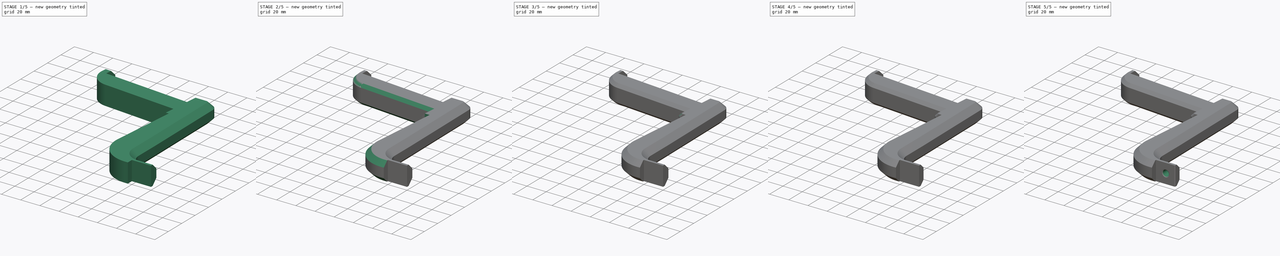
[diagram: build sequence overview — one tinted view per stage of 5, left to right]
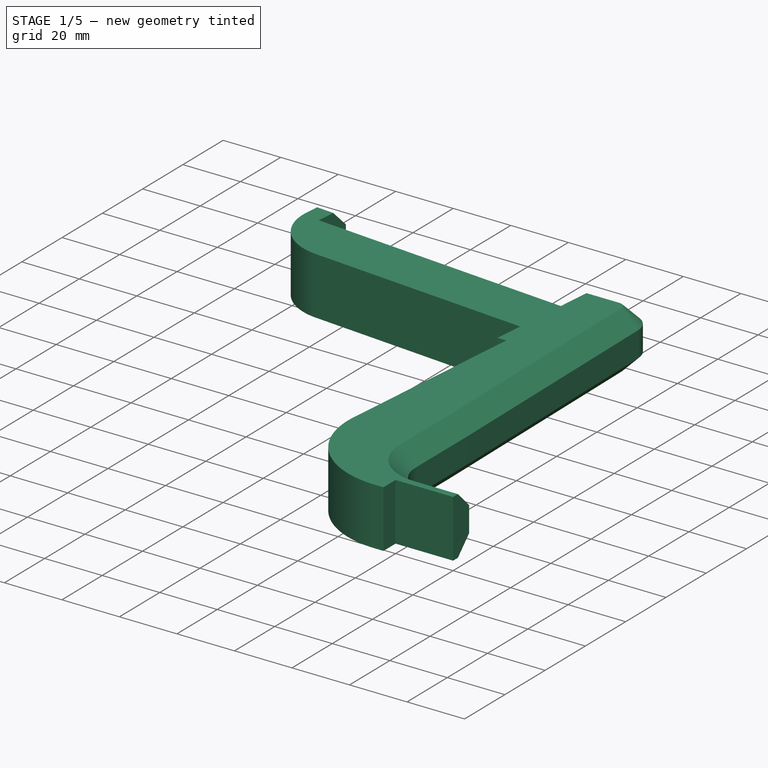
[diagram: stage 1 of 5 — iso view after this stage's code; geometry added in this stage tinted green]
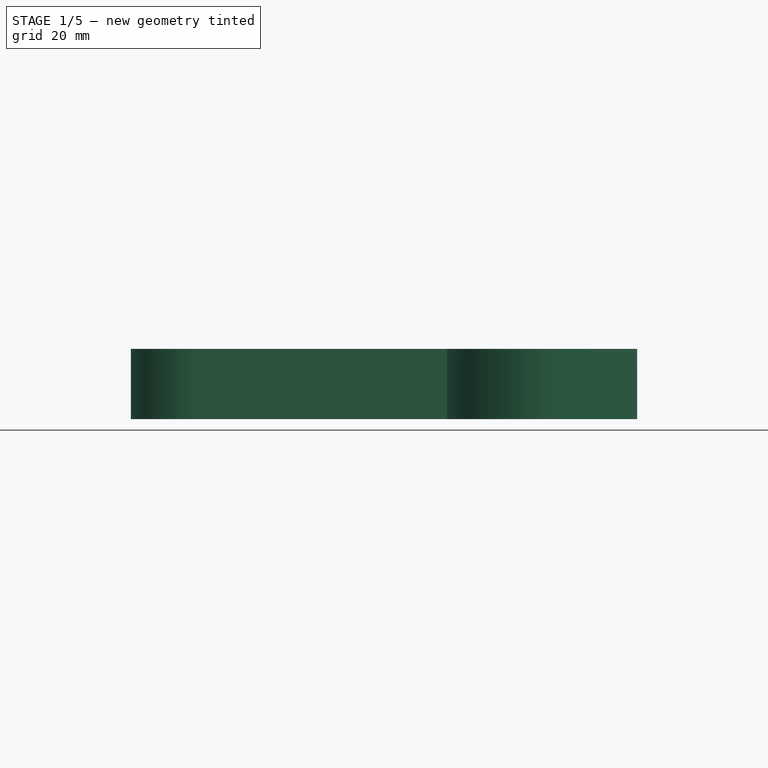
[diagram: stage 1 of 5 — front view after this stage's code; geometry added in this stage tinted green]
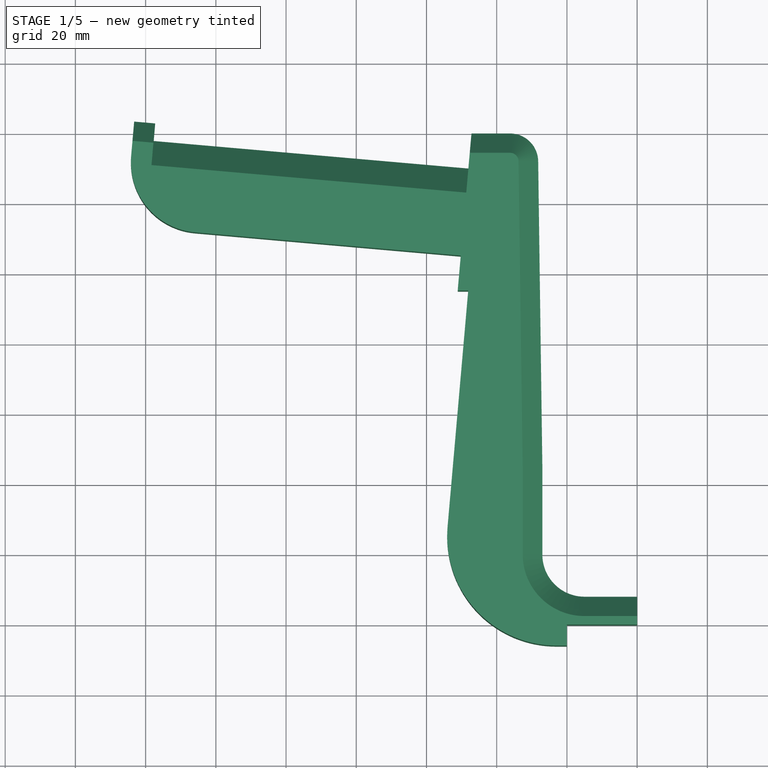
[diagram: stage 1 of 5 — top view after this stage's code; geometry added in this stage tinted green]
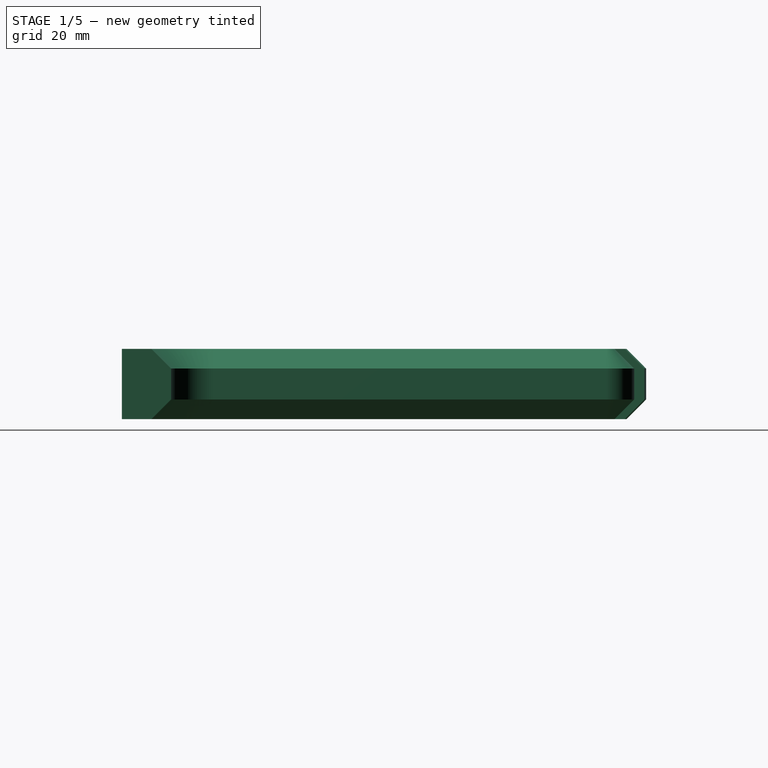
[diagram: stage 1 of 5 — right view after this stage's code; geometry added in this stage tinted green]
FCSTD DOCUMENT  (FreeCAD 0.17R12871 (Git))
Label: CR-3dpM
License: All rights reserved
LicenseURL: http://en.wikipedia.org/wiki/All_rights_reserved
objects: PartDesign::Fillet×7, PartDesign::Chamfer×6, Sketcher::SketchObject×2, PartDesign::Pad×1, PartDesign::Pocket×1, PartDesign::Body×1
note: 20 computed .brp shape members not serialized (recipe doc carries the construction recipe); baked Part::Feature solids carry a one-line shape summary decoded from their .brp

FEATURE [Sketcher::SketchObject] Sketch
  MapMode = 5
  Support = -> [XY_Plane]
  sketch-geometry (22):
    g0: LineSegment StartX=0 StartY=0 StartZ=0 EndX=20 EndY=0 EndZ=0
    g1: LineSegment StartX=20 StartY=0 StartZ=0 EndX=20 EndY=8 EndZ=0
    g2: LineSegment StartX=20 StartY=8 StartZ=0 EndX=5 EndY=8 EndZ=0
    g3: LineSegment StartX=-16.1898 StartY=139.962 StartZ=0 EndX=-27.1898 EndY=139.962 EndZ=0
    g4: LineSegment StartX=-27.1898 StartY=139.962 StartZ=0 EndX=-28.0613 EndY=130 EndZ=0
    g5: LineSegment StartX=-28.0613 StartY=130 StartZ=0 EndX=-117.719 EndY=137.844 EndZ=0
    g6: LineSegment StartX=-117.719 StartY=137.844 StartZ=0 EndX=-117.283 EndY=142.825 EndZ=0
    g7: LineSegment StartX=-117.283 StartY=142.825 StartZ=0 EndX=-123.26 EndY=143.348 EndZ=0
    g8: LineSegment StartX=-123.26 StartY=143.348 StartZ=0 EndX=-124.132 EndY=133.386 EndZ=0
    g9: LineSegment StartX=-105.951 StartY=111.719 StartZ=0 EndX=-30.2402 EndY=105.095 EndZ=0
    g10: LineSegment StartX=-30.2402 StartY=105.095 StartZ=0 EndX=-31.1118 EndY=95.1332 EndZ=0
    g11: LineSegment StartX=-31.1118 StartY=95.1332 StartZ=0 EndX=-28.1118 EndY=95.1332 EndZ=0
    g12: LineSegment StartX=-28.1118 StartY=95.1332 StartZ=0 EndX=-34 EndY=27.8306 EndZ=0
    g13: LineSegment StartX=-3 StartY=-6 StartZ=0 EndX=0 EndY=-6 EndZ=0
    g14: LineSegment StartX=0 StartY=-6 StartZ=0 EndX=0 EndY=0 EndZ=0
    g15: ArcOfCircle CenterX=5 CenterY=20 CenterZ=0 NormalX=0 NormalY=0 NormalZ=1 AngleXU=0 Radius=12 StartAngle=3.14159 EndAngle=4.71239
    g16: ArcOfCircle CenterX=-16.1898 CenterY=131.962 CenterZ=0 NormalX=0 NormalY=0 NormalZ=1 AngleXU=0 Radius=8 StartAngle=0.0136721 EndAngle=1.5708
    g17: LineSegment [constr] StartX=-30.2402 StartY=105.095 StartZ=0 EndX=-28.0613 EndY=130 EndZ=0
    g18: ArcOfCircle CenterX=-104.208 CenterY=131.643 CenterZ=0 NormalX=0 NormalY=0 NormalZ=1 AngleXU=0 Radius=20 StartAngle=3.05433 EndAngle=4.62512
    g19: ArcOfCircle CenterX=-3 CenterY=25.1184 CenterZ=0 NormalX=0 NormalY=0 NormalZ=1 AngleXU=0 Radius=31.1184 StartAngle=3.05433 EndAngle=4.71239
    g20: LineSegment StartX=-7 StartY=20 StartZ=0 EndX=-7 EndY=45 EndZ=0
    g21: LineSegment StartX=-7 StartY=45 StartZ=0 EndX=-8.19052 EndY=132.071 EndZ=0
  constraints (60):
    c: Coincident(g-1,g0)
    c: PointOnObject(g0,g-1)
    c: Coincident(g0,g1)
    c: Coincident(g1,g2)
    c: Horizontal(g2)
    c: Horizontal(g3)
    c: Coincident(g4,g5)
    c: Coincident(g5,g6)
    c: Coincident(g6,g7)
    c: Coincident(g7,g8)
    c: Coincident(g9,g10)
    c: Coincident(g10,g11)
    c: Horizontal(g11)
    c: Coincident(g11,g12)
    c: Coincident(g13,g14)
    c: Coincident(g14,g0)
    c: Vertical(g14)
    c: Tangent(g2,g15) = 1.5708
    c: Tangent(g20,g15) = 1.5708
    c: Tangent(g3,g16) = -1.5708
    c: Parallel(g9,g5)
    c: Parallel(g5,g7)
    c: Coincident(g17,g9)
    c: Coincident(g17,g4)
    c: Parallel(g10,g17)
    c: Parallel(g17,g4)
    c: Parallel(g4,g6)
    c: Parallel(g6,g8)
    c: Angle(g5) = 3.05433
    c: Angle(g10) = -1.65806
    c: DistanceY(g-1,g4) = 130
    c: DistanceY(g14,g14) = 6
    c: DistanceX(g-1,g0) = 20
    c: Vertical(g1)
    c: DistanceY(g1,g1) = 8
    c: DistanceX(g20,g1) = 27
    c: Radius(g15) = 12
    c: Distance(g5) = 90
    c: Distance(g4) = 10
    c: Distance(g17) = 25
    c: Distance(g10) = 10
    c: Distance(g6) = 5
    c: Distance(g7) = 6
    c: Radius(g16) = 8
    c: Tangent(g8,g18) = -1.5708
    c: Tangent(g9,g18) = -1.5708
    c: Radius(g18) = 20
    c: Tangent(g12,g19) = -1.5708
    c: Tangent(g13,g19) = -1.5708
    c: DistanceX(g12,g13) = 34
    c: Horizontal(g13)
    c: DistanceX(g13,g13) = 3
    c: Vertical(g20)
    c: Coincident(g21,g20)
    c: Angle(g12) = -1.65806
    c: Coincident(g4,g3)
    c: Tangent(g16,g21) = -1.5708
    c: DistanceY(g20,g20) = 25
    c: DistanceX(g11,g11) = 3
    c: DistanceX(g3,g3) = 11
FEATURE [PartDesign::Pad] Pad
  Length = 20
  Length2 = 100
  Profile = -> Sketch
  Type = 0
FEATURE [Sketcher::SketchObject] Sketch001
  MapMode = 5
  Placement = pos=(0,0,0) rot=(1,0,0;1.5708rad)
  sketch-geometry (1):
    g0: Circle CenterX=10.1 CenterY=10 CenterZ=0 NormalX=0 NormalY=0 NormalZ=1 AngleXU=0 Radius=3
  constraints (3):
    c: Radius(g0) = 3
    c: DistanceY(g-1,g0) = 10
    c: DistanceX(g-1,g0) = 10.1
FEATURE [PartDesign::Chamfer] Chamfer
  Base = -> Pad [Edge19,Edge18]
  BaseFeature = -> Pad
  Size = 7
FEATURE [PartDesign::Chamfer] Chamfer001
  Base = -> Chamfer [Edge41,Edge21,Edge36,Edge16]
  BaseFeature = -> Chamfer
  Size = 5.6
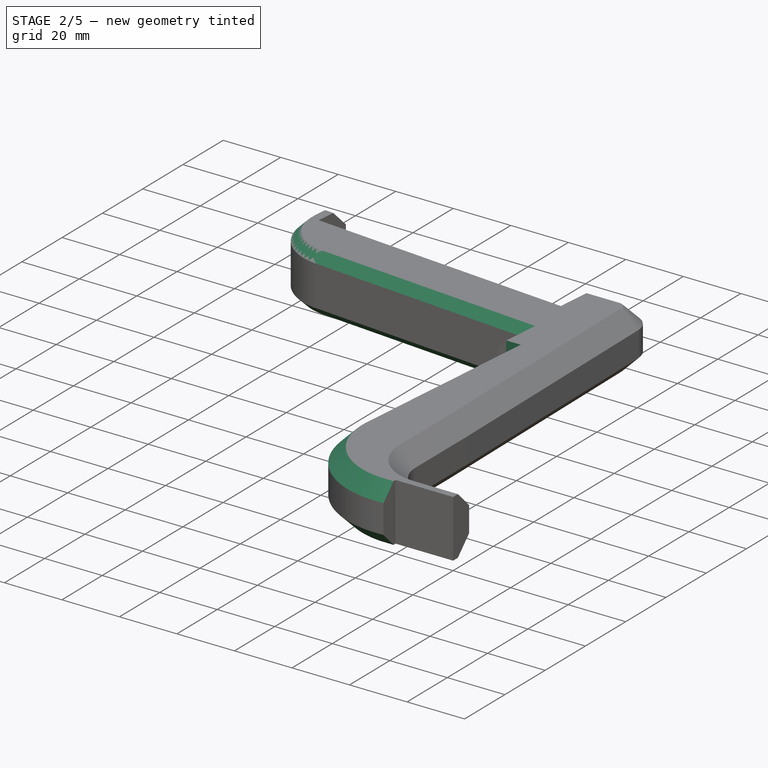
[diagram: stage 2 of 5 — iso view after this stage's code; geometry added in this stage tinted green]
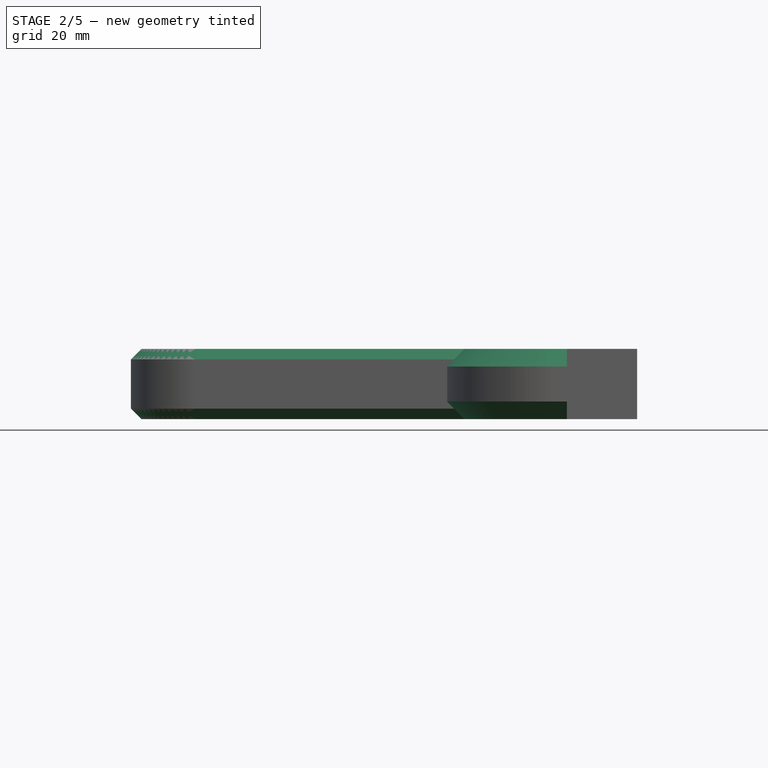
[diagram: stage 2 of 5 — front view after this stage's code; geometry added in this stage tinted green]
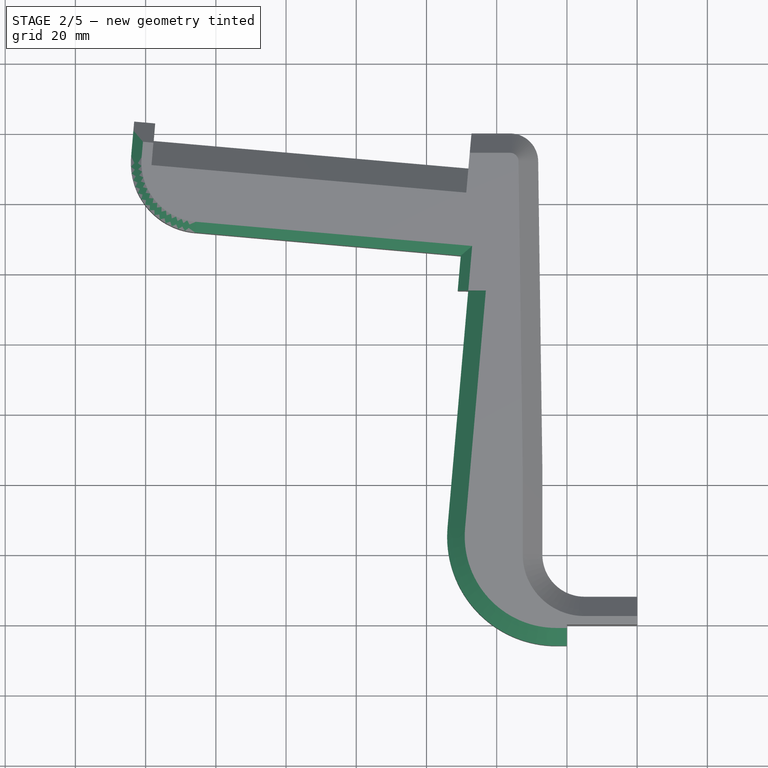
[diagram: stage 2 of 5 — top view after this stage's code; geometry added in this stage tinted green]
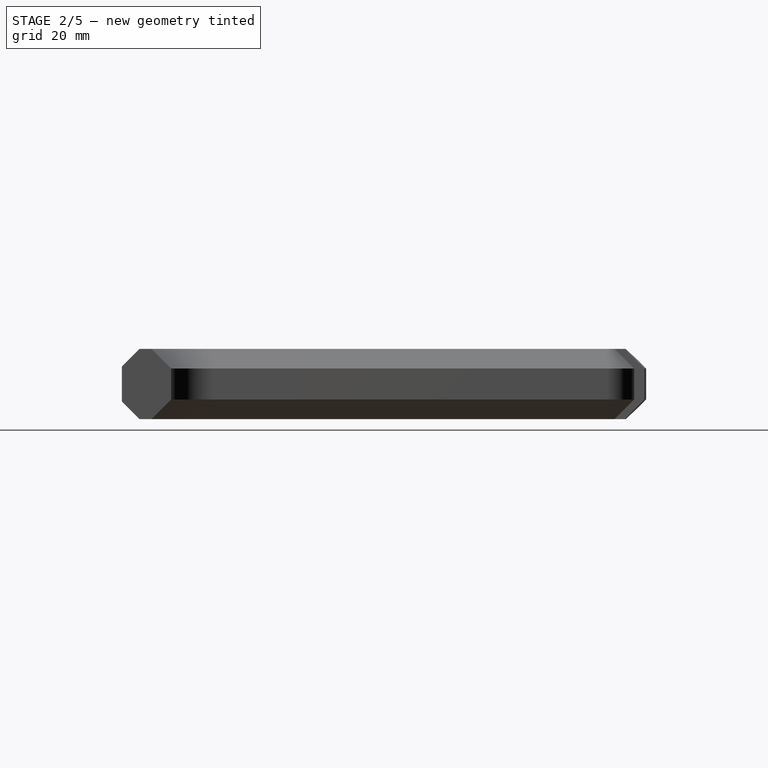
[diagram: stage 2 of 5 — right view after this stage's code; geometry added in this stage tinted green]
FEATURE [PartDesign::Chamfer] Chamfer002
  Base = -> Chamfer001 [Edge52,Edge23]
  BaseFeature = -> Chamfer001
  Size = 3
FEATURE [PartDesign::Chamfer] Chamfer003
  Base = -> Chamfer002 [Edge61,Edge14]
  BaseFeature = -> Chamfer002
  Size = 5
FEATURE [PartDesign::Chamfer] Chamfer004
  Base = -> Chamfer003 [Edge57,Edge12]
  BaseFeature = -> Chamfer003
  Size = 3
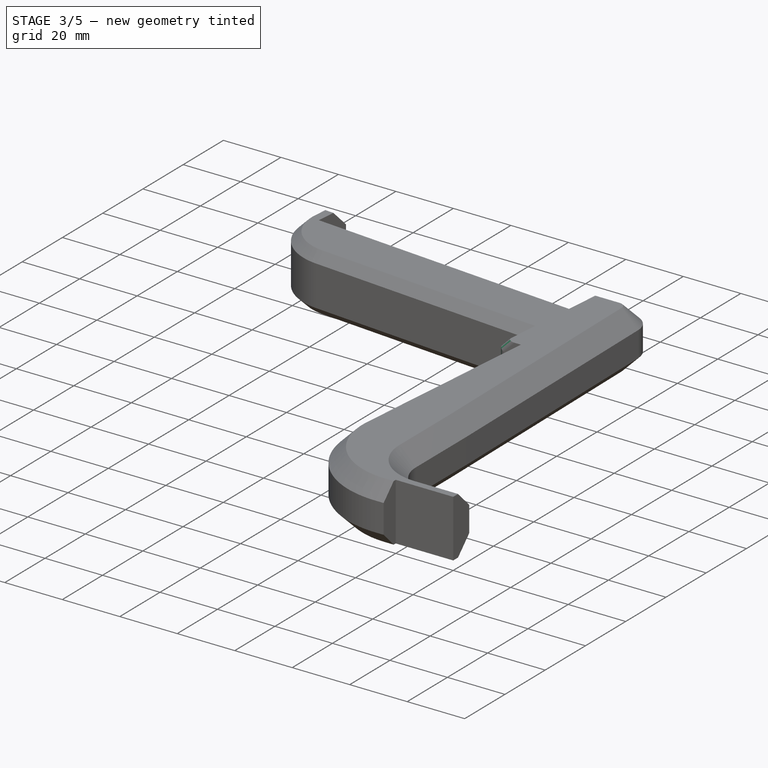
[diagram: stage 3 of 5 — iso view after this stage's code; geometry added in this stage tinted green]
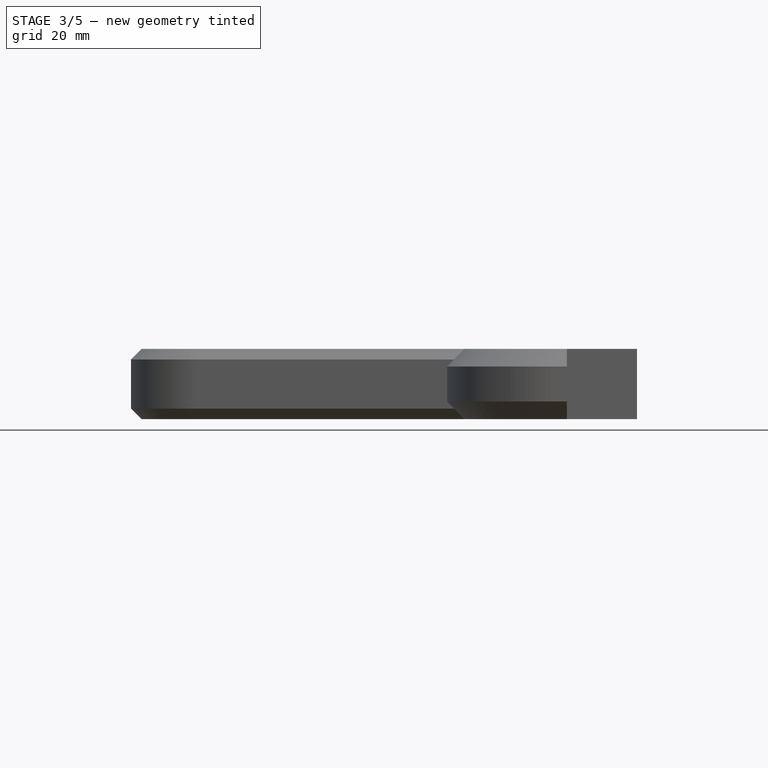
[diagram: stage 3 of 5 — front view after this stage's code; geometry added in this stage tinted green]
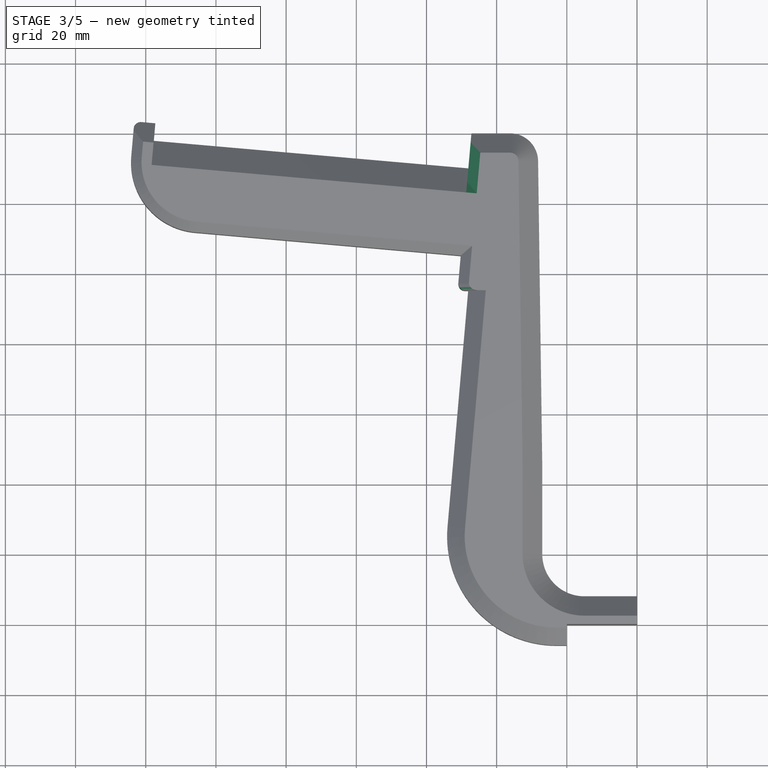
[diagram: stage 3 of 5 — top view after this stage's code; geometry added in this stage tinted green]
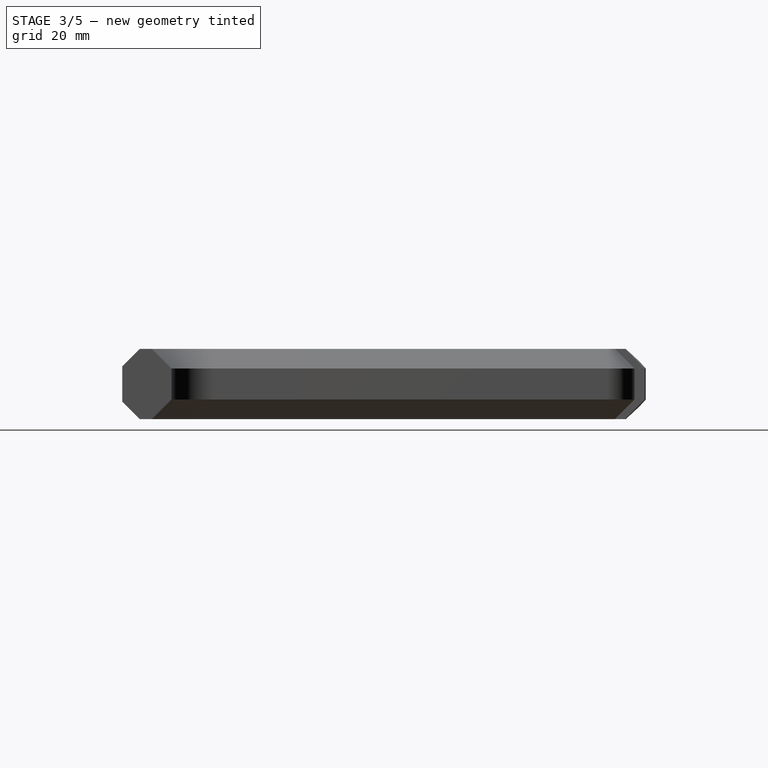
[diagram: stage 3 of 5 — right view after this stage's code; geometry added in this stage tinted green]
FEATURE [PartDesign::Fillet] Fillet
  Base = -> Chamfer004 [Edge25,Edge27,Edge29]
  BaseFeature = -> Chamfer004
  Radius = 2
FEATURE [PartDesign::Fillet] Fillet001
  Base = -> Fillet [Edge129]
  BaseFeature = -> Fillet
  Radius = 2
FEATURE [PartDesign::Chamfer] Chamfer005
  Base = -> Fillet001 [Edge99,Edge39]
  BaseFeature = -> Fillet001
  Size = 3
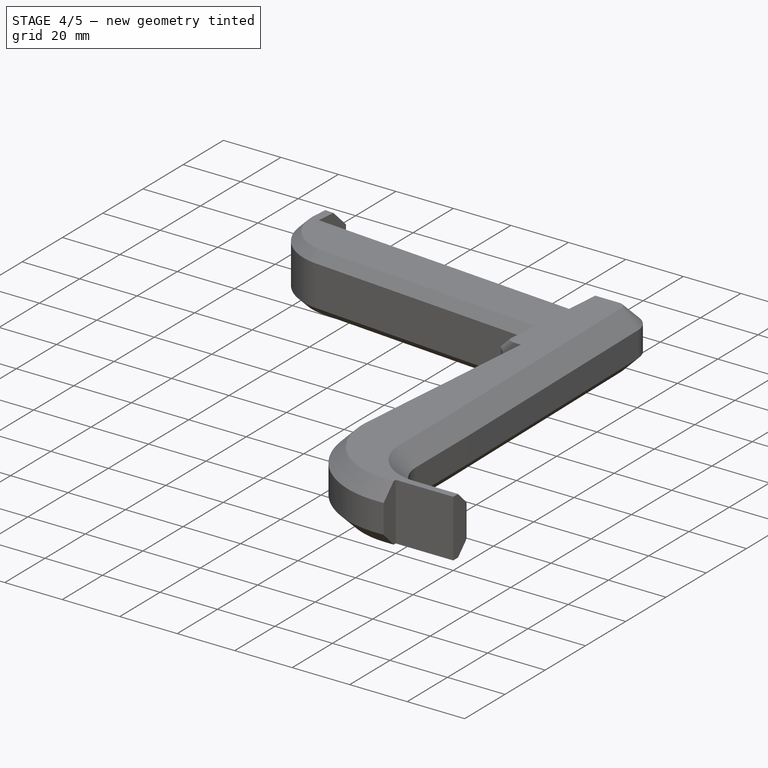
[diagram: stage 4 of 5 — iso view after this stage's code; geometry added in this stage tinted green]
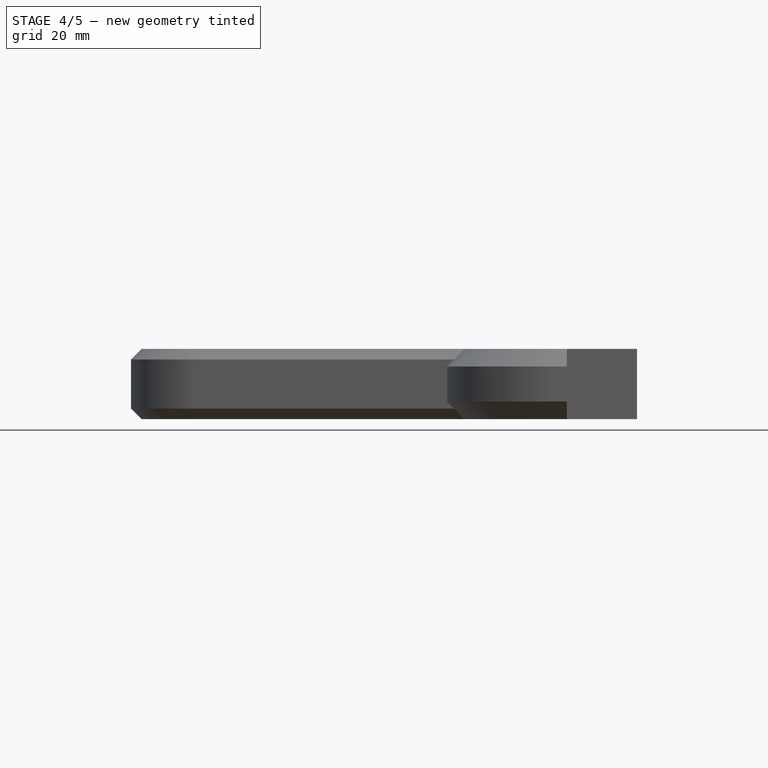
[diagram: stage 4 of 5 — front view after this stage's code; geometry added in this stage tinted green]
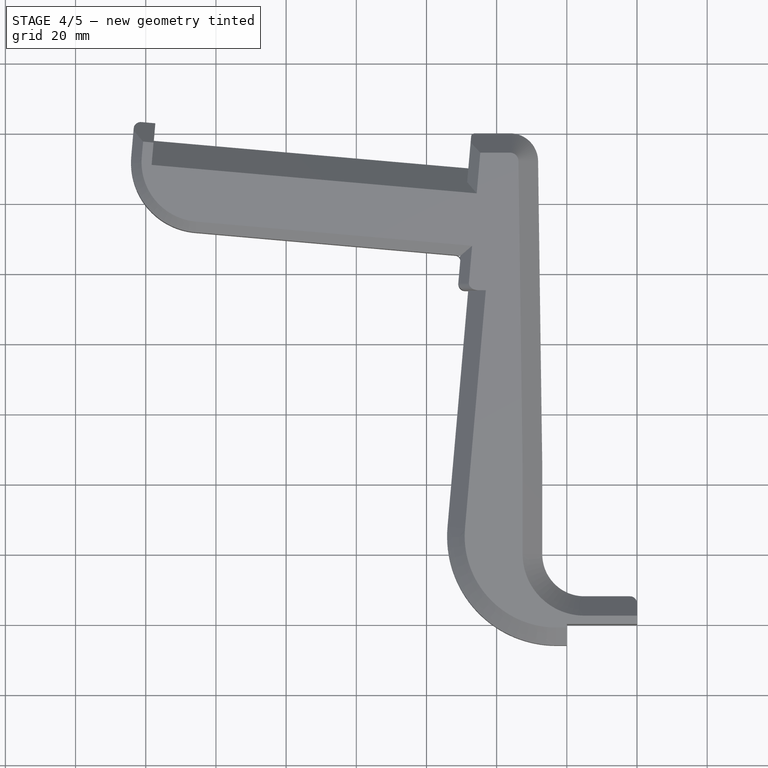
[diagram: stage 4 of 5 — top view after this stage's code; geometry added in this stage tinted green]
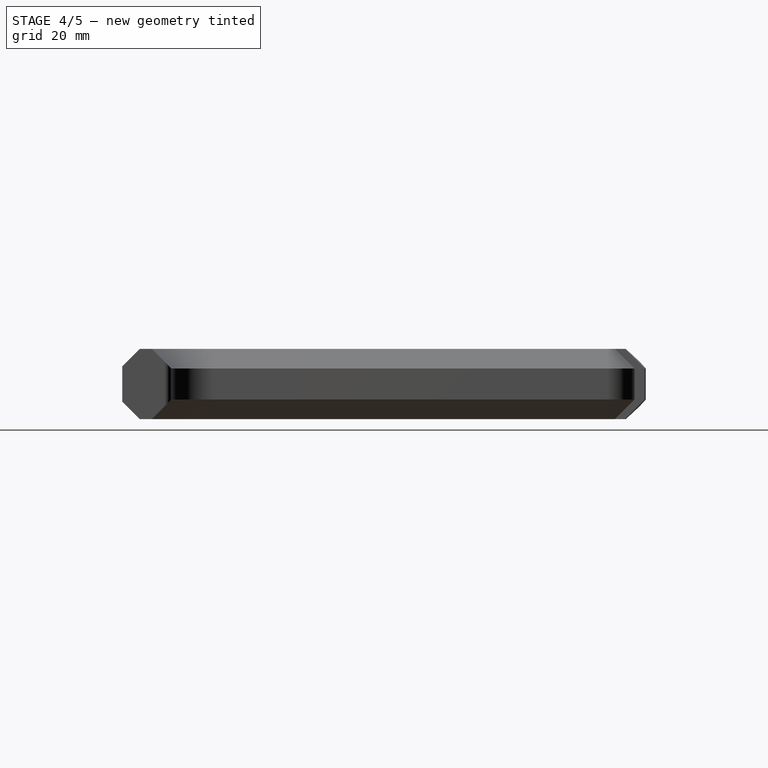
[diagram: stage 4 of 5 — right view after this stage's code; geometry added in this stage tinted green]
FEATURE [PartDesign::Fillet] Fillet002
  Base = -> Chamfer005 [Edge57]
  BaseFeature = -> Chamfer005
  Radius = 2
FEATURE [PartDesign::Fillet] Fillet003
  Base = -> Fillet002 [Edge152]
  BaseFeature = -> Fillet002
  Radius = 1
FEATURE [PartDesign::Fillet] Fillet004
  Base = -> Fillet003 [Edge148]
  BaseFeature = -> Fillet003
  Radius = 1.5
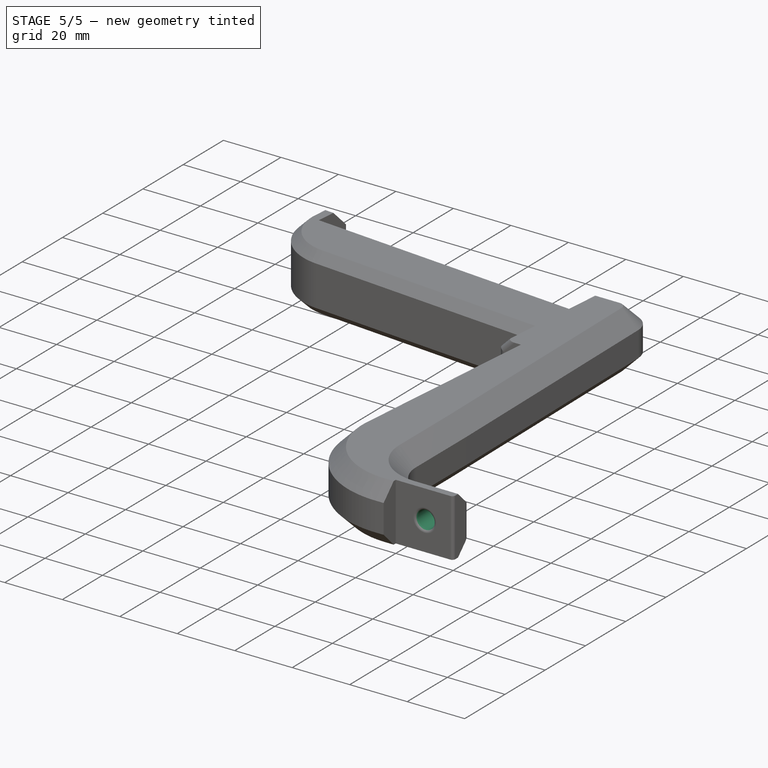
[diagram: stage 5 of 5 — iso view after this stage's code; geometry added in this stage tinted green]
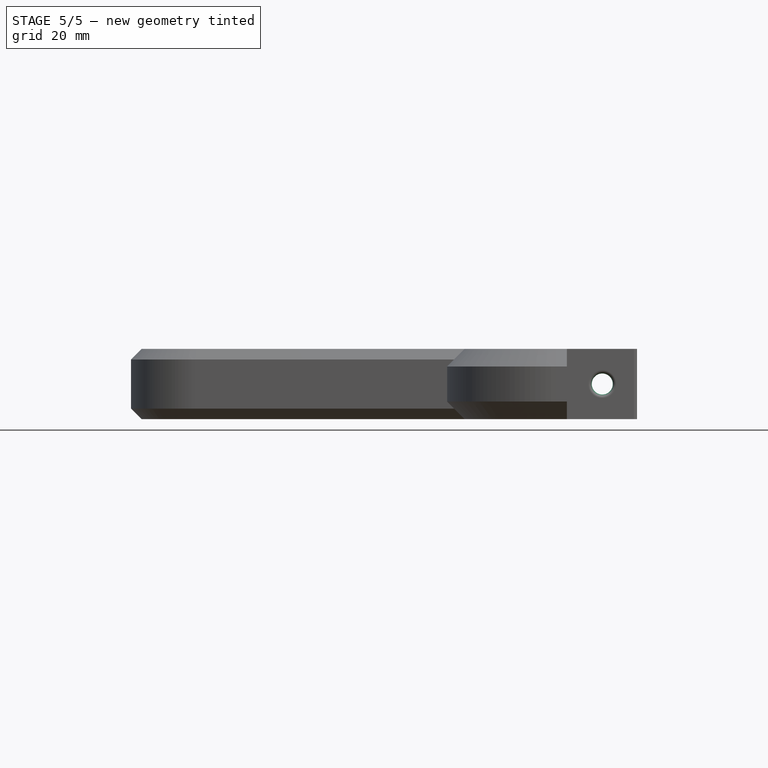
[diagram: stage 5 of 5 — front view after this stage's code; geometry added in this stage tinted green]
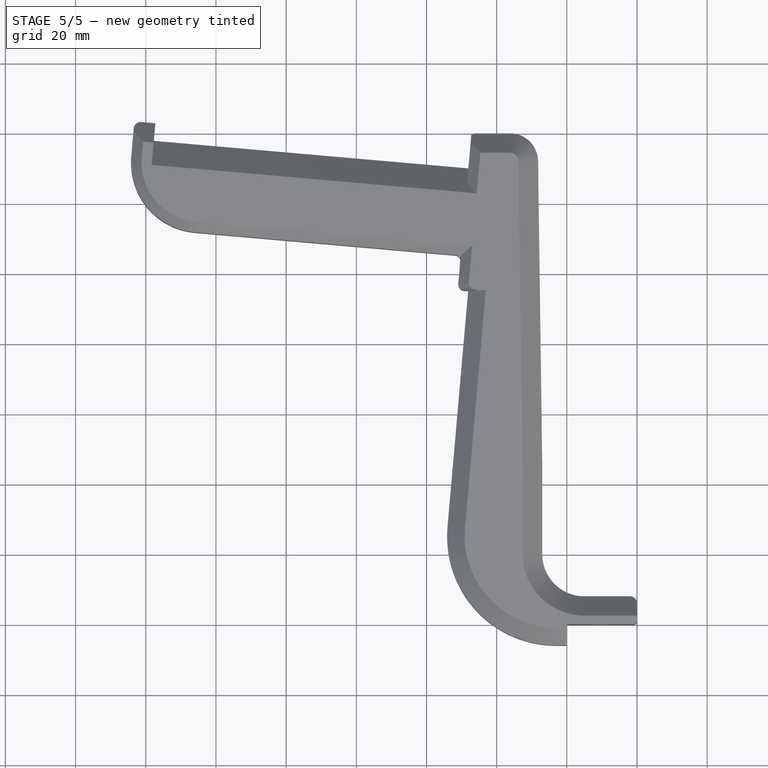
[diagram: stage 5 of 5 — top view after this stage's code; geometry added in this stage tinted green]
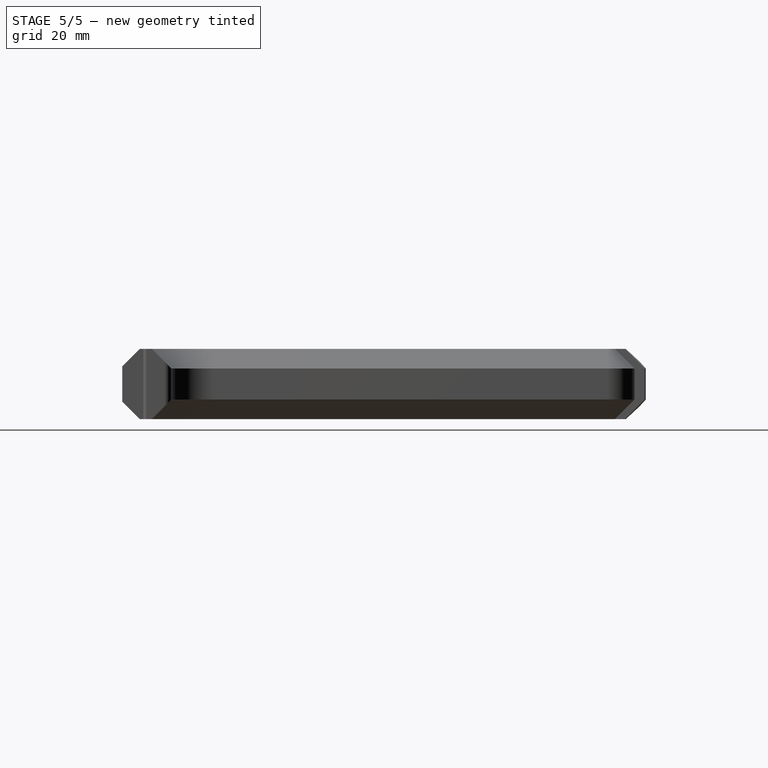
[diagram: stage 5 of 5 — right view after this stage's code; geometry added in this stage tinted green]
FEATURE [PartDesign::Pocket] Pocket
  BaseFeature = -> Fillet004
  Length = 5
  Profile = -> Sketch001
  Type = 1
FEATURE [PartDesign::Fillet] Fillet005
  Base = -> Pocket [Edge102,Edge162]
  BaseFeature = -> Pocket
  Radius = 1
FEATURE [PartDesign::Fillet] Fillet006
  Base = -> Fillet005 [Edge5]
  BaseFeature = -> Fillet005
  Radius = 1
FEATURE [PartDesign::Body] Body
  Group = -> [Sketch,Pad,Chamfer,Chamfer001,Chamfer002,Chamfer003,Chamfer004,Sketch001,Fillet,Fillet001,Chamfer005,Fillet002,Fillet003,Fillet004,Pocket,Fillet005,Fillet006]
  Origin = -> BodyOrigin
  Tip = -> Fillet006
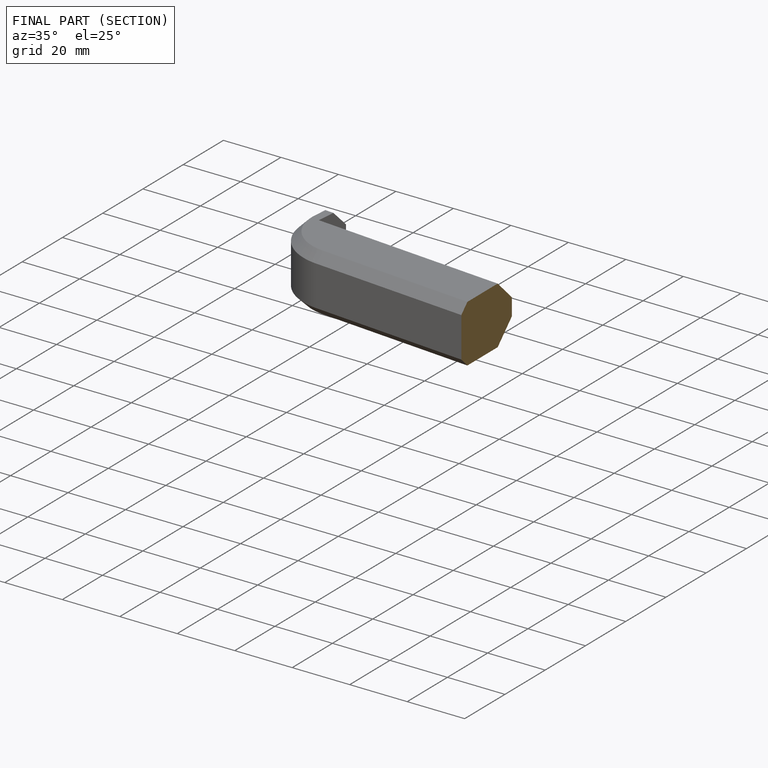
[diagram: finished part — half-section view (interior)]
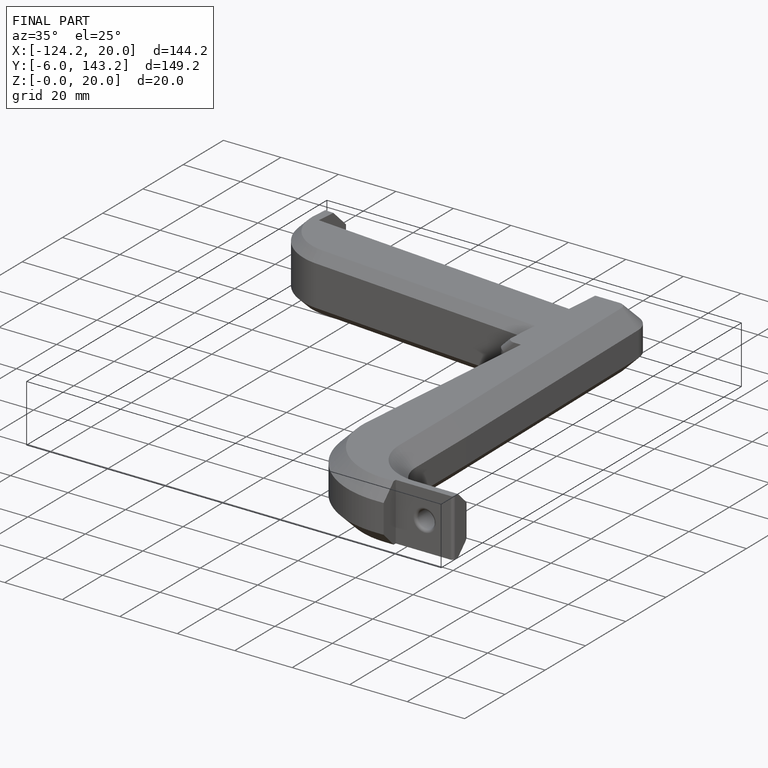
[diagram: finished part — iso view with bounding-box wireframe]
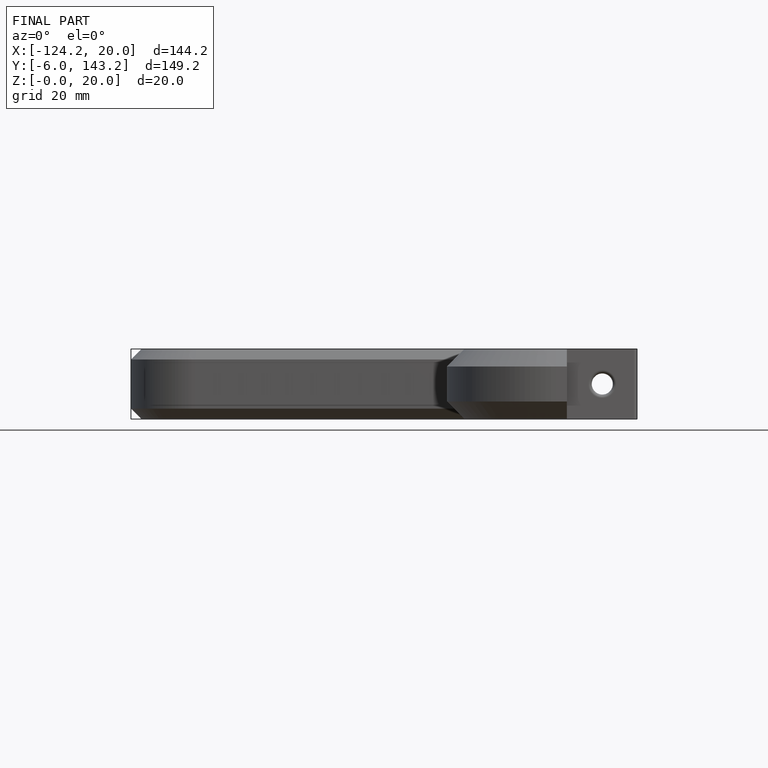
[diagram: finished part — front view with bounding-box wireframe]
